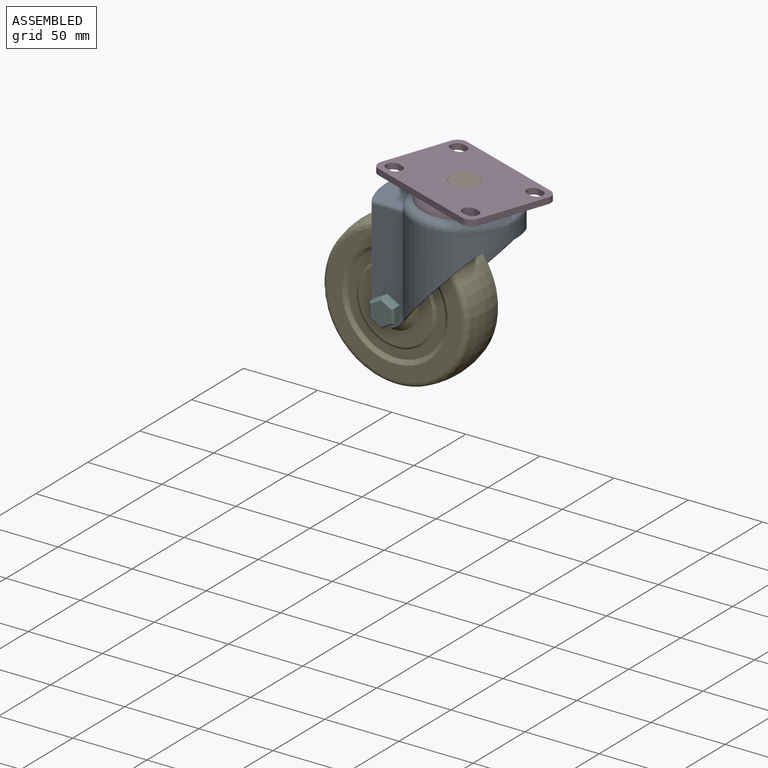
[diagram: assembled view]
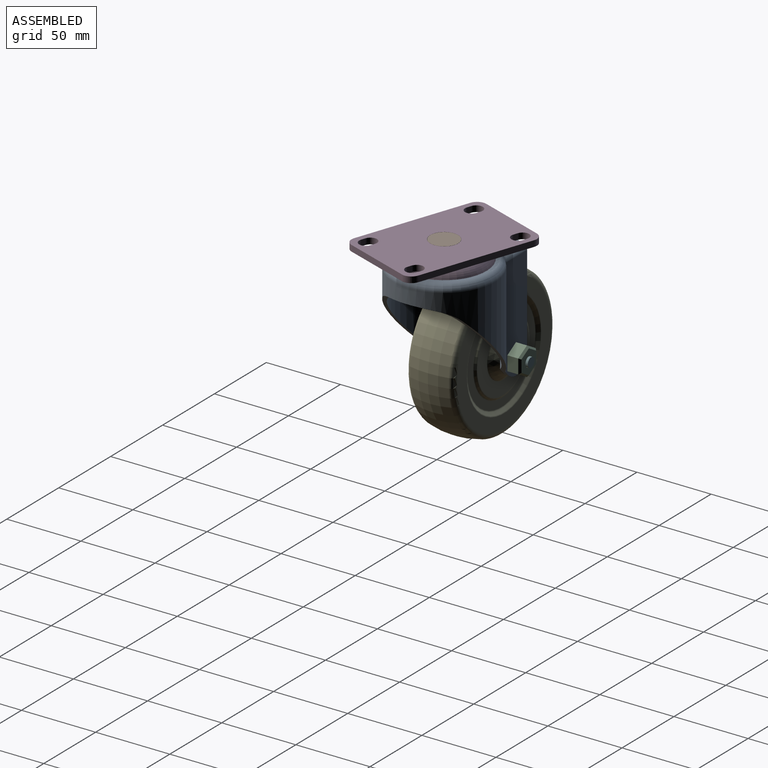
[diagram: assembled view, second angle]
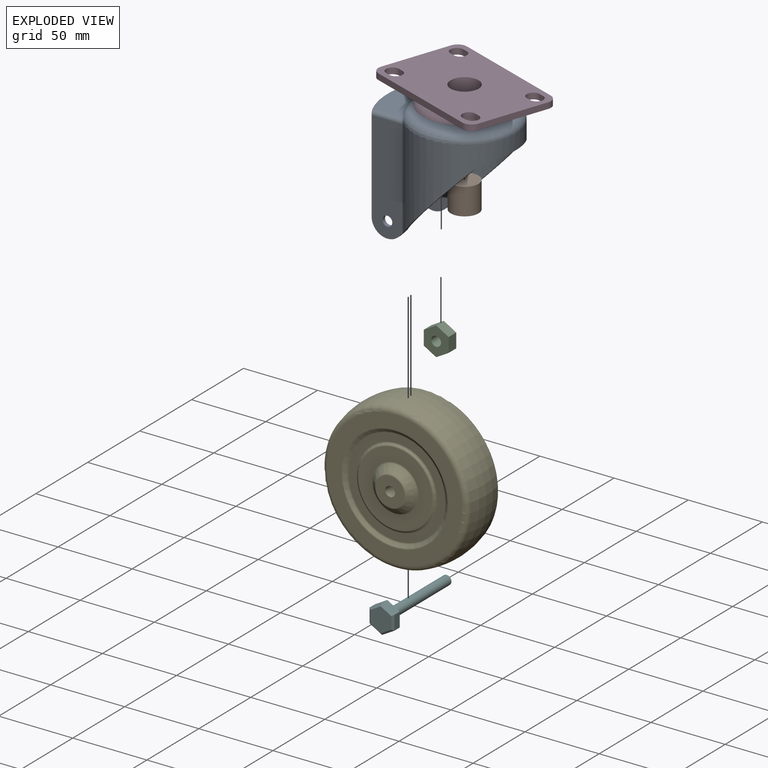
[diagram: exploded view]
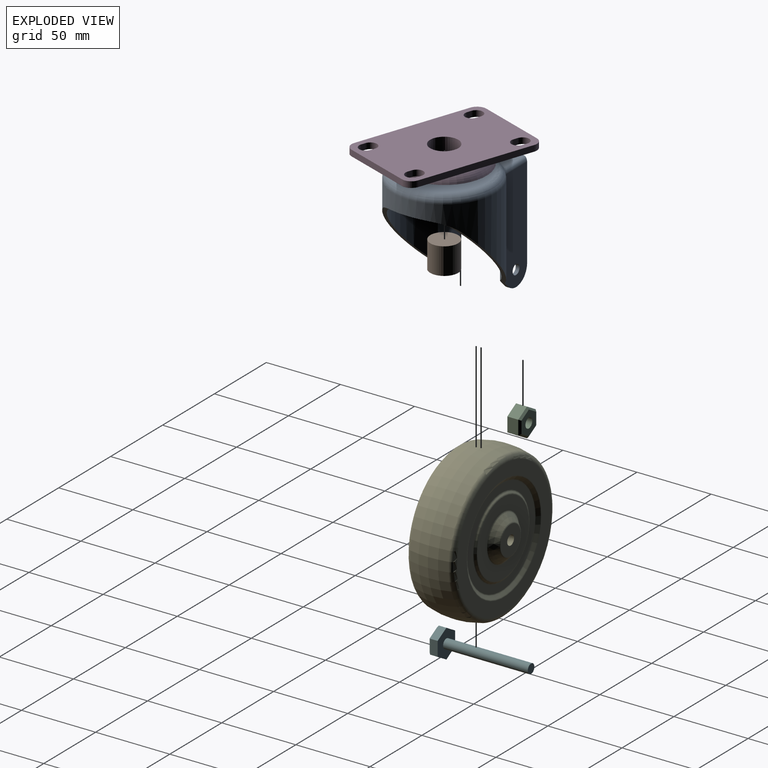
[diagram: exploded view, second angle]
ASSEMBLY  parts=6 mates=5
PART A: 32 faces, bbox 89.3x74.4x78.9 mm
  f0: plane 52.93x49.61mm, normal (0.73,0,-0.68), area 202.5mm2, adj f5,f7,f9,f12,f14,f16,f24
  f1: cylinder r=10.67mm len=18.45mm, axis (0,-1,0), area 64.7mm2, adj f2,f4,f8,f15
  f2: plane 61.72x5.08mm, normal (-1,0,0), area 158.2mm2, adj f1,f4,f11,f15,f21
  f3: plane 41.91x23.03mm, normal (0,0,1), area 710.2mm2, adj f6,f22,f23,f27
  f4: plane 72.39x20.26mm, normal (0,-1,0), area 1392mm2, adj f1,f2,f8,f17,f23,f30
  f5: plane 72.39x20.26mm, normal (0,1,0), area 1392mm2, adj f0,f9,f10,f18,f22,f24
  f6: cylinder r=50.8mm len=46.99mm, axis (0,0,1), area 121mm2, adj f3,f11,f22,f23
  f7: cylinder r=34.29mm len=68.58mm, axis (0,0,1), area 4988.6mm2, adj f0,f8,f12,f19,f24,f25,f29,f30
  f8: plane 52.93x49.61mm, normal (0.73,0,-0.68), area 202.5mm2, adj f1,f4,f7,f12,f15,f16,f30
  f9: cylinder r=10.67mm len=18.45mm, axis (0,-1,0), area 64.7mm2, adj f0,f5,f10,f14
  f10: plane 61.72x5.08mm, normal (-1,0,0), area 158.2mm2, adj f5,f9,f11,f14,f20
  f11: plane 83.82x63.5mm, normal (0,0,-1), area 3670.1mm2, adj f2,f6,f10,f16,f20,f21,f31
  f12: cylinder r=25.4mm len=53.28mm, axis (0,-1,0), area 163.5mm2, adj f0,f7,f8,f16
  f13: plane 58.42x58.42mm, normal (0,0,1), area 2395.5mm2, adj f19,f31
  f14: plane 69.85x22.46mm, normal (0,-1,0), area 1479.8mm2, adj f0,f9,f10,f16,f18,f20
  f15: plane 69.85x22.46mm, normal (0,1,0), area 1479.8mm2, adj f1,f2,f8,f16,f17,f21
  f16: cylinder r=31.75mm len=64.74mm, axis (0,0,1), area 4743.9mm2, adj f0,f8,f11,f12,f14,f15,f20,f21
  f17: cylinder r=3.3mm len=6.6mm, axis (0,-1,0), area 52.7mm2, adj f4,f15
  f18: cylinder r=3.3mm len=6.6mm, axis (0,-1,0), area 52.7mm2, adj f5,f14
  f19: torus R=29.21mm, axis (0,0,1), area 1492.8mm2, adj f7,f13,f26,f27,f28
  f20: cylinder r=2.54mm len=22.46mm, axis (-1,0,0), area 86.6mm2, adj f10,f11,f14,f16
  f21: cylinder r=2.54mm len=22.46mm, axis (1,0,0), area 86.6mm2, adj f2,f11,f15,f16
  f22: cylinder r=2.54mm len=21.5mm, axis (-1,0,0), area 78.3mm2, adj f3,f5,f6,f25,f26
  f23: cylinder r=2.54mm len=21.5mm, axis (1,0,0), area 78.3mm2, adj f3,f4,f6,f28,f29
  f24: cylinder r=2.54mm len=67.09mm, axis (0,0,1), area 132mm2, adj f0,f5,f7,f25
  f25: bspline ~3.18x2.31mm, area 1.9mm2, adj f7,f22,f24,f26
  f26: bspline ~5.4x5.25mm, area 11.3mm2, adj f19,f22,f25,f27
  f27: torus R=35.81mm, axis (0,0,1), area 115mm2, adj f3,f19,f26,f28
  f28: bspline ~5.4x5.25mm, area 11.3mm2, adj f19,f23,f27,f29
  f29: bspline ~2.45x2.03mm, area 1.9mm2, adj f7,f23,f28,f30
  f30: cylinder r=2.54mm len=67.09mm, axis (0,0,1), area 132mm2, adj f4,f7,f8,f29
  f31: cylinder r=9.53mm len=19.05mm, axis (0,0,-1), area 380mm2, adj f11,f13
PART B: 3 faces, bbox 18.8x18.8x18 mm
  f0: plane 18.8x18.8mm, normal (0,0,-1), area 277.5mm2, adj f2
  f1: plane 18.8x18.8mm, normal (0,0,1), area 277.5mm2, adj f2
  f2: cylinder r=9.4mm len=18.8mm, axis (0,0,1), area 1064.9mm2, adj f0,f1
PART C: 15 faces, bbox 16.8x8.6x19.4 mm
  f0: plane 9.68x7.37mm, normal (1,0,0), area 71.3mm2, adj f1,f5,f8,f11
  f1: plane 8.38x7.37mm, normal (0.5,0,-0.87), area 71.3mm2, adj f0,f2,f8,f13
  f2: plane 8.38x7.37mm, normal (-0.5,0,-0.87), area 71.3mm2, adj f1,f3,f8,f14
  f3: plane 9.68x7.37mm, normal (-1,0,0), area 71.3mm2, adj f2,f4,f8,f12
  f4: plane 8.38x7.37mm, normal (-0.5,0,0.87), area 71.3mm2, adj f3,f5,f8,f10
  f5: plane 8.38x7.37mm, normal (0.5,0,0.87), area 71.3mm2, adj f0,f4,f8,f9
  f6: cylinder r=3.3mm len=8.64mm, axis (0,-1,0), area 179.2mm2, adj f7,f8
  f7: plane 16.42x14.22mm, normal (0,1,0), area 141mm2, adj f6,f9,f10,f11,f12,f13,f14
  f8: plane 19.36x16.76mm, normal (0,-1,0), area 209.1mm2, adj f0,f1,f2,f3,f4,f5,f6
  f9: plane 8.38x5.57mm, normal (0.35,0.71,0.61), area 16.1mm2, adj f5,f7,f10,f11
  f10: plane 8.38x5.57mm, normal (-0.35,0.71,0.61), area 16.1mm2, adj f4,f7,f9,f12
  f11: plane 9.68x1.27mm, normal (0.71,0.71,0), area 16.1mm2, adj f0,f7,f9,f13
  f12: plane 9.68x1.27mm, normal (-0.71,0.71,0), area 16.1mm2, adj f3,f7,f10,f14
  f13: plane 8.38x5.57mm, normal (0.35,0.71,-0.61), area 16.1mm2, adj f1,f7,f11,f14
  f14: plane 8.38x5.57mm, normal (-0.35,0.71,-0.61), area 16.1mm2, adj f2,f7,f12,f13
PART D: 29 faces, bbox 91.8x62.6x14.2 mm
  f0: plane 4.06x3.18mm, normal (0,1,0), area 12.9mm2, adj f1,f23,f24,f25
  f1: cylinder r=4.45mm len=8.89mm, axis (0,0,-1), area 56.8mm2, adj f0,f2,f24,f25
  f2: plane 4.06x3.18mm, normal (0,-1,0), area 12.9mm2, adj f1,f23,f24,f25
  f3: plane 4.06x3.18mm, normal (0,-1,0), area 12.9mm2, adj f4,f19,f24,f25
  f4: cylinder r=4.45mm len=8.89mm, axis (0,0,-1), area 56.8mm2, adj f3,f5,f24,f25
  f5: plane 4.06x3.18mm, normal (0,1,0), area 12.9mm2, adj f4,f19,f24,f25
  f6: cylinder r=6.35mm len=6.35mm, axis (0,0,-1), area 40.5mm2, adj f7,f20,f24,f25
  f7: plane 79.12x4.06mm, normal (0,-1,0), area 321.5mm2, adj f6,f8,f24,f25
  f8: cylinder r=6.35mm len=6.35mm, axis (0,0,-1), area 40.5mm2, adj f7,f9,f24,f25
  f9: plane 47.63x4.06mm, normal (1,0,0), area 193.5mm2, adj f8,f10,f24,f25
  f10: cylinder r=6.35mm len=6.35mm, axis (0,0,-1), area 40.5mm2, adj f9,f11,f24,f25
  f11: plane 79.12x4.06mm, normal (0,1,0), area 321.5mm2, adj f10,f12,f24,f25
  f12: cylinder r=6.35mm len=6.35mm, axis (0,0,-1), area 40.5mm2, adj f11,f20,f24,f25
  f13: plane 4.06x3.18mm, normal (0,-1,0), area 12.9mm2, adj f14,f21,f24,f25
  f14: cylinder r=4.45mm len=8.89mm, axis (0,0,-1), area 56.8mm2, adj f13,f15,f24,f25
  f15: plane 4.06x3.18mm, normal (0,1,0), area 12.9mm2, adj f14,f21,f24,f25
  f16: cylinder r=4.45mm len=8.89mm, axis (0,0,-1), area 56.8mm2, adj f17,f22,f24,f25
  f17: plane 4.06x3.18mm, normal (0,1,0), area 12.9mm2, adj f16,f18,f24,f25
  f18: cylinder r=4.45mm len=8.89mm, axis (0,0,-1), area 56.8mm2, adj f17,f22,f24,f25
  f19: cylinder r=4.45mm len=8.89mm, axis (0,0,-1), area 56.8mm2, adj f3,f5,f24,f25
  f20: plane 47.63x4.06mm, normal (-1,0,0), area 193.5mm2, adj f6,f12,f24,f25
  f21: cylinder r=4.45mm len=8.89mm, axis (0,0,-1), area 56.8mm2, adj f13,f15,f24,f25
  f22: plane 4.06x3.18mm, normal (0,-1,0), area 12.9mm2, adj f16,f18,f24,f25
  f23: cylinder r=4.45mm len=8.89mm, axis (0,0,-1), area 56.8mm2, adj f0,f2,f24,f25
  f24: plane 91.82x60.33mm, normal (0,0,1), area 4858.3mm2, adj f0,f1,f2,f3,f4,f5,f6,f7
  f25: plane 91.82x60.33mm, normal (0,0,-1), area 4040.3mm2, adj f0,f1,f2,f3,f4,f5,f6,f7
  f26: plane 57.15x57.15mm, normal (0,0,-1), area 2280.2mm2, adj f27,f28
  f27: torus R=18.74mm, axis (0,0,1), area 2063.1mm2, adj f25,f26
  f28: cylinder r=9.53mm len=19.05mm, axis (0,0,1), area 699.3mm2, adj f24,f26
PART E: 30 faces, bbox 40.6x106.6x106.6 mm
  f0: revolved ~101.6x101.6mm, area 16650.5mm2, adj f16,f17
  f1: plane 90.84x90.84mm, normal (-1,0,0), area 2412.6mm2, adj f16,f18
  f2: cone r=35.56mm half-angle=53.1deg, axis (-1,0,0), area 501.6mm2, adj f18,f19
  f3: plane 65.19x65.19mm, normal (-1,0,0), area 1014.5mm2, adj f19,f20
  f4: cone r=26.67mm half-angle=45deg, axis (1,0,0), area 121.7mm2, adj f20,f21
  f5: plane 49.75x49.75mm, normal (-1,0,0), area 1162.8mm2, adj f21,f22
  f6: cone r=15.24mm half-angle=45deg, axis (1,0,0), area 489.3mm2, adj f22,f23
  f7: plane 19.27x19.27mm, normal (-1,0,0), area 257.3mm2, adj f15,f23
  f8: plane 19.27x19.27mm, normal (1,0,0), area 257.3mm2, adj f15,f24
  f9: cone r=15.24mm half-angle=45deg, axis (-1,0,0), area 489.3mm2, adj f24,f25
  f10: plane 49.75x49.75mm, normal (1,0,0), area 1162.8mm2, adj f25,f26
  f11: cone r=26.67mm half-angle=45deg, axis (-1,0,0), area 121.7mm2, adj f26,f27
  f12: plane 65.19x65.19mm, normal (1,0,0), area 1014.5mm2, adj f27,f28
  f13: cone r=35.56mm half-angle=53.1deg, axis (1,0,0), area 501.6mm2, adj f28,f29
  f14: plane 90.84x90.84mm, normal (1,0,0), area 2412.6mm2, adj f17,f29
  f15: cylinder r=3.3mm len=40.64mm, axis (-1,0,0), area 843.2mm2, adj f7,f8
  f16: torus R=45.42mm, axis (-1,0,0), area 1493.8mm2, adj f0,f1
  f17: torus R=45.42mm, axis (-1,0,0), area 1493.8mm2, adj f0,f14
  f18: torus R=35.98mm, axis (-1,0,0), area 182.7mm2, adj f1,f2
  f19: torus R=32.6mm, axis (-1,0,0), area 169.4mm2, adj f2,f3
  f20: torus R=27.2mm, axis (-1,0,0), area 167.5mm2, adj f3,f4
  f21: torus R=24.87mm, axis (-1,0,0), area 158.9mm2, adj f4,f5
  f22: torus R=15.77mm, axis (-1,0,0), area 95.8mm2, adj f5,f6
  f23: torus R=9.63mm, axis (-1,0,0), area 63.3mm2, adj f6,f7
  f24: torus R=9.63mm, axis (-1,0,0), area 63.3mm2, adj f8,f9
  f25: torus R=15.77mm, axis (-1,0,0), area 95.8mm2, adj f9,f10
  f26: torus R=24.87mm, axis (-1,0,0), area 158.9mm2, adj f10,f11
  f27: torus R=27.2mm, axis (-1,0,0), area 167.5mm2, adj f11,f12
  f28: torus R=32.6mm, axis (-1,0,0), area 169.4mm2, adj f12,f13
  f29: torus R=35.98mm, axis (-1,0,0), area 182.7mm2, adj f13,f14
PART F: 16 faces, bbox 16.8x63.5x19.4 mm
  f0: plane 9.68x5.08mm, normal (-1,0,0), area 49.2mm2, adj f1,f5,f7,f10
  f1: plane 8.38x5.08mm, normal (-0.5,0,-0.87), area 49.2mm2, adj f0,f2,f7,f12
  f2: plane 8.38x5.08mm, normal (0.5,0,-0.87), area 49.2mm2, adj f1,f3,f7,f14
  f3: plane 9.68x5.08mm, normal (1,0,0), area 49.2mm2, adj f2,f4,f7,f15
  f4: plane 8.38x5.08mm, normal (0.5,0,0.87), area 49.2mm2, adj f3,f5,f7,f13
  f5: plane 8.38x5.08mm, normal (-0.5,0,0.87), area 49.2mm2, adj f0,f4,f7,f11
  f6: plane 16.42x14.22mm, normal (0,-1,0), area 175.2mm2, adj f10,f11,f12,f13,f14,f15
  f7: plane 19.36x16.76mm, normal (0,1,0), area 211.7mm2, adj f0,f1,f2,f3,f4,f5,f8
  f8: cylinder r=3.17mm len=57.15mm, axis (0,-1,0), area 1140.1mm2, adj f7,f9
  f9: plane 6.35x6.35mm, normal (0,1,0), area 31.7mm2, adj f8
  f10: plane 9.68x1.27mm, normal (-0.71,-0.71,0), area 16.1mm2, adj f0,f6,f11,f12
  f11: plane 8.38x5.57mm, normal (-0.35,-0.71,0.61), area 16.1mm2, adj f5,f6,f10,f13
  f12: plane 8.38x5.57mm, normal (-0.35,-0.71,-0.61), area 16.1mm2, adj f1,f6,f10,f14
  f13: plane 8.38x5.57mm, normal (0.35,-0.71,0.61), area 16.1mm2, adj f4,f6,f11,f15
  f14: plane 8.38x5.57mm, normal (0.35,-0.71,-0.61), area 16.1mm2, adj f2,f6,f12,f15
  f15: plane 9.68x1.27mm, normal (0.71,-0.71,0), area 16.1mm2, adj f3,f6,f13,f14
PLACE A t=(2.14,-18.41,23.25)mm fixed
PLACE B t=(2.14,-18.41,37.22)mm
PLACE C t=(2.14,-18.41,23.25)mm
PLACE D rot(axis=(0,0,1),160.8deg) t=(2.14,-18.41,37.22)mm
PLACE E rot(axis=(-0.66,-0.66,0.35),141.3deg) t=(-33.5,-18.87,-38.47)mm
PLACE F t=(2.14,-18.41,23.25)mm
MATE fastened C.f6 <-> A.f1  axis (0,-1,0) through (-33.5,5.09,-38.47)mm
MATE cylindrical E.f2 <-> A.f1  axis (0,-1,0) through (-33.5,-39.19,-38.47)mm
MATE fastened A.f31 <-> B.f2  axis (0,0,-1) through (2.14,-18.41,23.25)mm
MATE revolute D.f28 <-> B.f2  axis (0,0,1) through (2.14,-18.41,41.28)mm
MATE fastened A.f1 <-> F.f8  axis (0,-1,0) through (-33.5,-41.9,-38.47)mm
